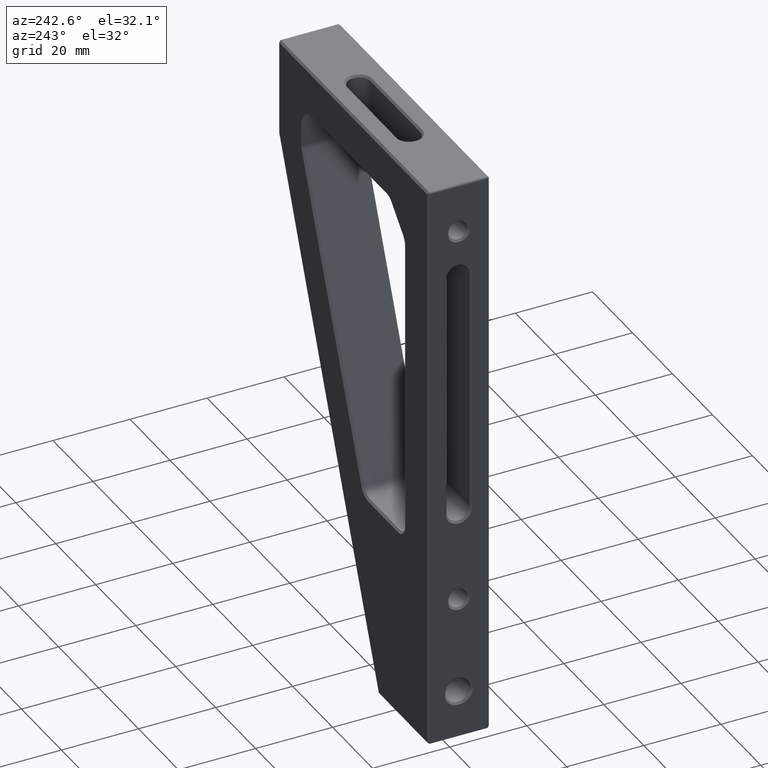
[diagram: clean part render]
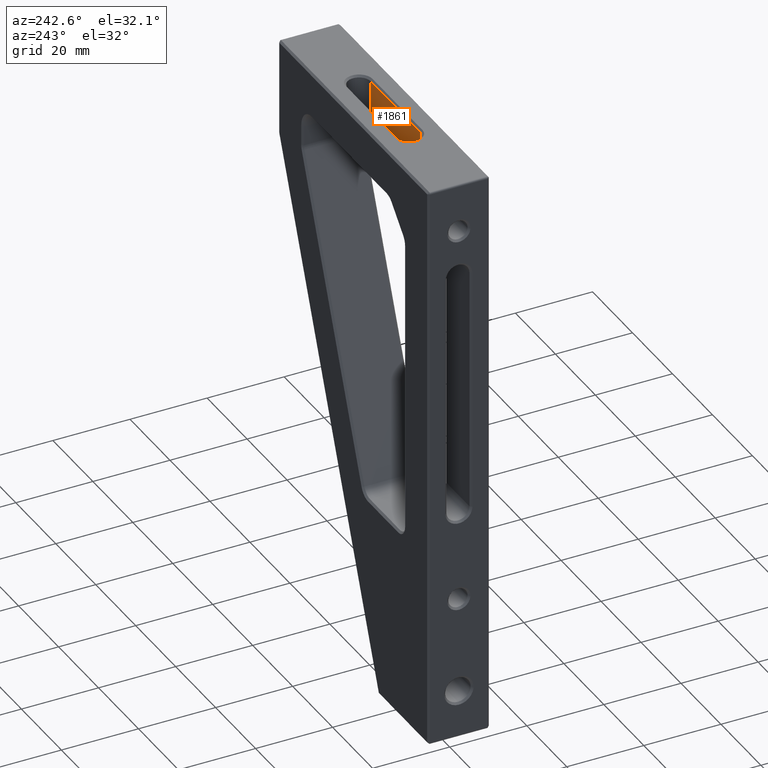
[diagram: same view with one face highlighted and labeled with its STEP entity id]
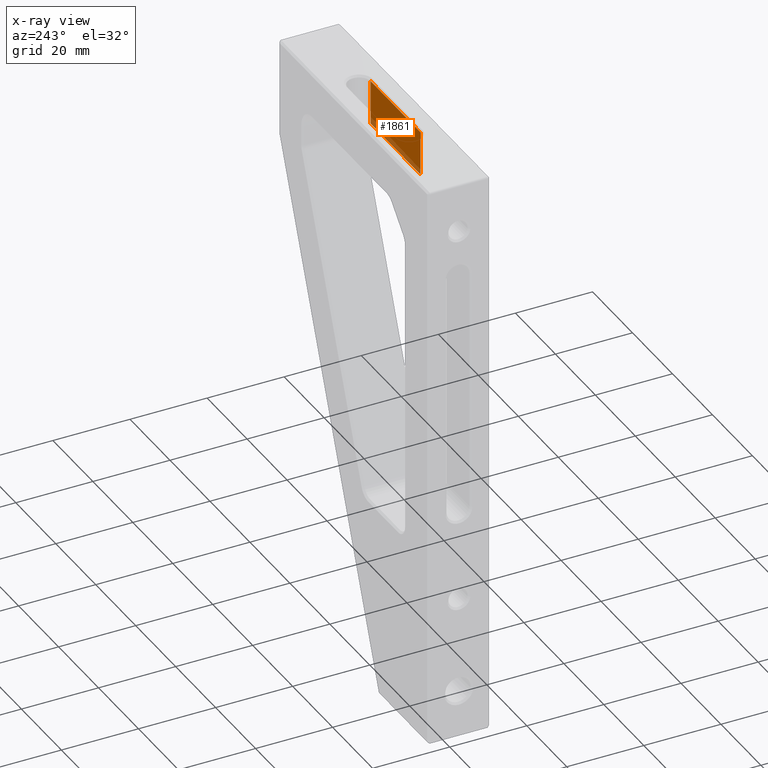
[diagram: x-ray of the same camera — body ghosted, the highlighted face saturated]
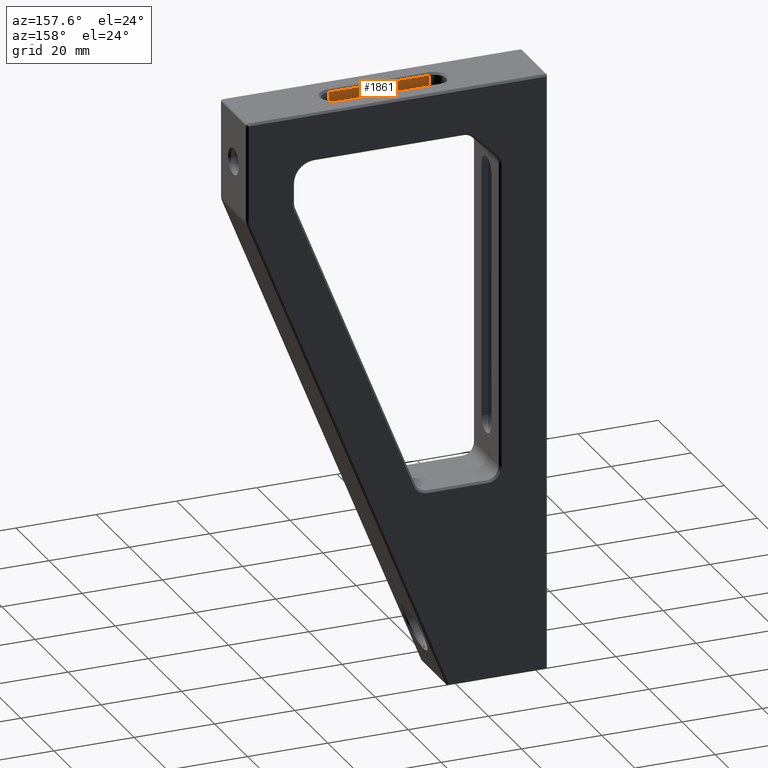
[diagram: same view with one face highlighted and labeled with its STEP entity id]
A machine part, auxiliary view. The second image highlights one B-rep face of the part: STEP entity #1861.
The next image is the same camera in x-ray: the body ghosted, the highlighted face saturated — about 14% of this face is hidden behind the body in this view.
A second angle (auxiliary view) of the same face is appended — the face is thin or edge-on in the first view.
In plain terms, the highlighted planar face has unit normal (0, -1, 0).
Its self-contained STEP definition (entity closure, byte-faithful):
#225 = CARTESIAN_POINT ( 'NONE',  ( -21.08705027806149701, -5.083758937690478596, 212.9999999999999716 ) ) ;
#229 = ORIENTED_EDGE ( 'NONE', *, *, #2124, .T. ) ;
#258 = ORIENTED_EDGE ( 'NONE', *, *, #617, .F. ) ;
#367 = CARTESIAN_POINT ( 'NONE',  ( -15.58705027806149523, -5.083758937690483926, 74.99899999999998101 ) ) ;
#439 = CARTESIAN_POINT ( 'NONE',  ( -15.58705027806149523, -5.083758937690483926, 74.99899999999998101 ) ) ;
#617 = EDGE_CURVE ( 'NONE', #2763, #651, #1933, .T. ) ;
#651 = VERTEX_POINT ( 'NONE', #3231 ) ;
#719 = LINE ( 'NONE', #225, #2721 ) ;
#770 = VECTOR ( 'NONE', #1559, 1000.000000000000000 ) ;
#991 = CARTESIAN_POINT ( 'NONE',  ( -15.58705027806149523, -5.083758937690481261, 212.9999999999999716 ) ) ;
#1205 = ORIENTED_EDGE ( 'NONE', *, *, #2964, .T. ) ;
#1264 = VERTEX_POINT ( 'NONE', #991 ) ;
#1333 = VERTEX_POINT ( 'NONE', #2493 ) ;
#1377 = DIRECTION ( 'NONE',  ( 1.000000000000000000, 1.908195823574489776E-16, 0.000000000000000000 ) ) ;
#1395 = DIRECTION ( 'NONE',  ( 0.000000000000000000, 0.000000000000000000, 1.000000000000000000 ) ) ;
#1559 = DIRECTION ( 'NONE',  ( 1.000000000000000000, 9.540979117872182639E-17, 9.540979117872447647E-17 ) ) ;
#1629 = CARTESIAN_POINT ( 'NONE',  ( 9.412949721938483449, -5.083758937690478596, 212.9999999999999716 ) ) ;
#1660 = FACE_OUTER_BOUND ( 'NONE', #2967, .T. ) ;
#1695 = LINE ( 'NONE', #439, #2932 ) ;
#1724 = DIRECTION ( 'NONE',  ( -1.000000000000000000, -0.000000000000000000, 0.000000000000000000 ) ) ;
#1800 = ORIENTED_EDGE ( 'NONE', *, *, #1910, .T. ) ;
#1830 = AXIS2_PLACEMENT_3D ( 'NONE', #367, #2389, #1377 ) ;
#1861 = ADVANCED_FACE ( 'NONE', ( #1660 ), #1937, .F. ) ;
#1910 = EDGE_CURVE ( 'NONE', #1264, #1333, #1695, .T. ) ;
#1933 = LINE ( 'NONE', #2176, #3029 ) ;
#1937 = PLANE ( 'NONE',  #1830 ) ;
#2108 = CARTESIAN_POINT ( 'NONE',  ( -15.58705027806149523, -5.083758937690483926, 224.4999999999999716 ) ) ;
#2124 = EDGE_CURVE ( 'NONE', #2763, #1264, #719, .T. ) ;
#2176 = CARTESIAN_POINT ( 'NONE',  ( 9.412949721938481673, -5.083758937690478596, 74.99899999999998101 ) ) ;
#2389 = DIRECTION ( 'NONE',  ( 1.908195823574489776E-16, -1.000000000000000000, 0.000000000000000000 ) ) ;
#2493 = CARTESIAN_POINT ( 'NONE',  ( -15.58705027806149523, -5.083758937691563062, 224.4999999999802185 ) ) ;
#2721 = VECTOR ( 'NONE', #1724, 1000.000000000000000 ) ;
#2763 = VERTEX_POINT ( 'NONE', #1629 ) ;
#2833 = LINE ( 'NONE', #2108, #770 ) ;
#2932 = VECTOR ( 'NONE', #1395, 1000.000000000000000 ) ;
#2964 = EDGE_CURVE ( 'NONE', #1333, #651, #2833, .T. ) ;
#2967 = EDGE_LOOP ( 'NONE', ( #1205, #258, #229, #1800 ) ) ;
#3029 = VECTOR ( 'NONE', #3198, 1000.000000000000000 ) ;
#3198 = DIRECTION ( 'NONE',  ( -0.000000000000000000, 0.000000000000000000, 1.000000000000000000 ) ) ;
#3231 = CARTESIAN_POINT ( 'NONE',  ( 9.412949721938483449, -5.083758937660106447, 224.4999999999462261 ) ) ;